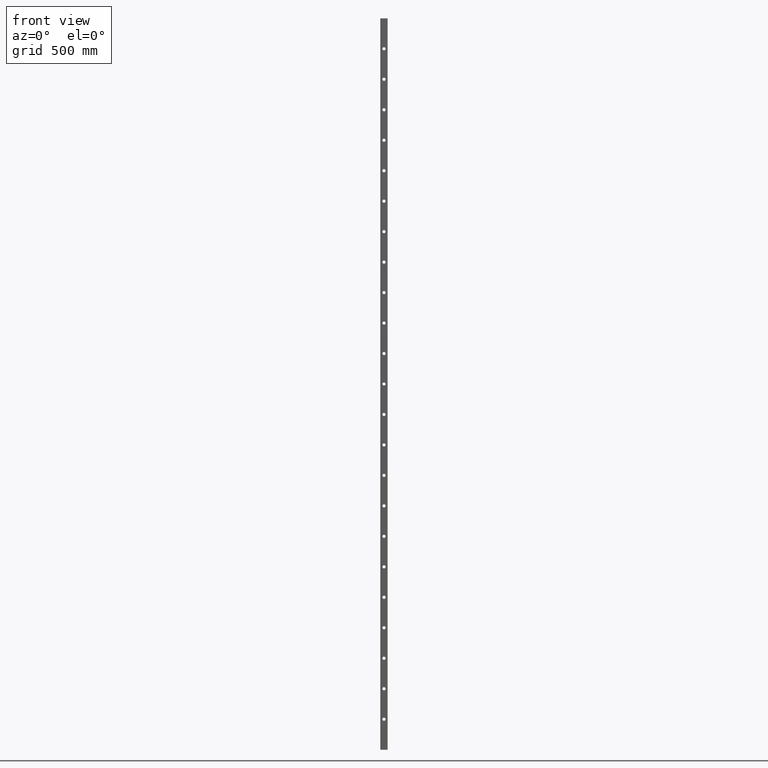
[diagram: clean part render]
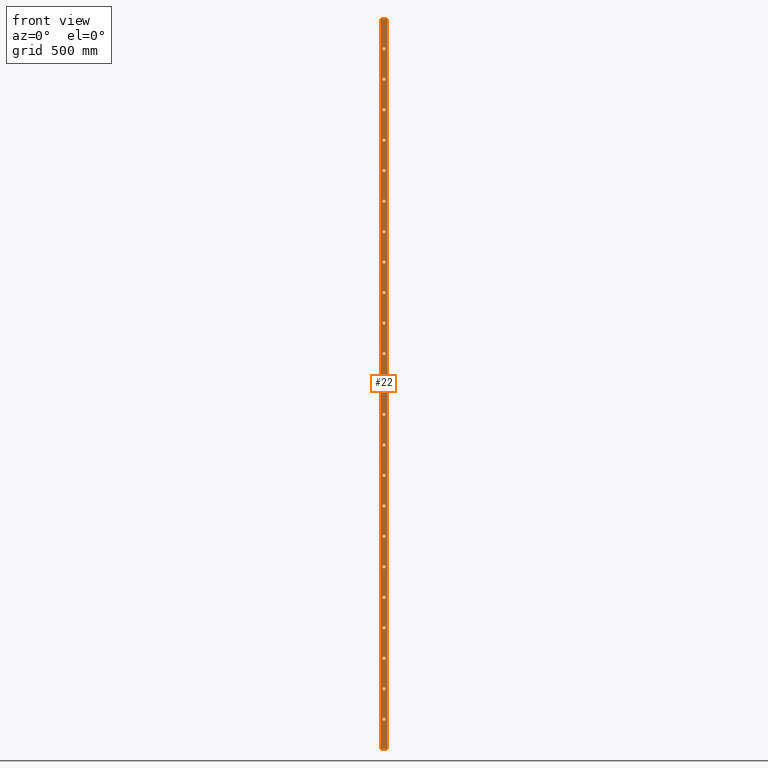
[diagram: same view with one face highlighted and labeled with its STEP entity id]
A machine part, front view. The second image highlights one B-rep face of the part: STEP entity #22.
In plain terms, the highlighted planar face has unit normal (0, 1, 0).
Its self-contained STEP definition (entity closure, byte-faithful):
#13 = DIRECTION ( 'NONE',  ( 0.000000000000000000, 1.000000000000000000, 0.000000000000000000 ) ) ;
#22 = ADVANCED_FACE ( 'NONE', ( #371, #197, #11808, #1985, #14286, #8826, #4262, #10920, #7963, #11641, #14462, #2338, #5296, #11463, #13586, #3744, #4957, #8465, #7604, #6902, #730, #11993, #7247, #13222 ), #1310, .F. ) ;
#32 = VERTEX_POINT ( 'NONE', #8476 ) ;
#41 = DIRECTION ( 'NONE',  ( -0.000000000000000000, -0.000000000000000000, -1.000000000000000000 ) ) ;
#132 = CARTESIAN_POINT ( 'NONE',  ( 1.178374951859557579E-11, -10.00000000000000178, 500.0000000000000000 ) ) ;
#186 = DIRECTION ( 'NONE',  ( 0.000000000000000000, 1.000000000000000000, 0.000000000000000000 ) ) ;
#197 = FACE_BOUND ( 'NONE', #4974, .T. ) ;
#220 = CARTESIAN_POINT ( 'NONE',  ( -12.00000000000001421, -10.00000000000000178, -1500.000000000000000 ) ) ;
#294 = EDGE_CURVE ( 'NONE', #1605, #1605, #4944, .T. ) ;
#371 = FACE_BOUND ( 'NONE', #9720, .T. ) ;
#372 = AXIS2_PLACEMENT_3D ( 'NONE', #14437, #12159, #14232 ) ;
#376 = VERTEX_POINT ( 'NONE', #8537 ) ;
#406 = ORIENTED_EDGE ( 'NONE', *, *, #8872, .T. ) ;
#510 = VECTOR ( 'NONE', #41, 1000.000000000000000 ) ;
#538 = DIRECTION ( 'NONE',  ( 0.000000000000000000, 0.000000000000000000, 1.000000000000000000 ) ) ;
#635 = DIRECTION ( 'NONE',  ( 0.000000000000000000, 0.000000000000000000, 1.000000000000000000 ) ) ;
#673 = CIRCLE ( 'NONE', #2835, 6.499999999999950262 ) ;
#730 = FACE_BOUND ( 'NONE', #1878, .T. ) ;
#734 = VERTEX_POINT ( 'NONE', #962 ) ;
#813 = DIRECTION ( 'NONE',  ( 0.000000000000000000, 0.000000000000000000, 1.000000000000000000 ) ) ;
#909 = CARTESIAN_POINT ( 'NONE',  ( 1.047444401652940017E-11, -10.00000000000000178, 131.4999999999999432 ) ) ;
#962 = CARTESIAN_POINT ( 'NONE',  ( 1.178374951859557579E-11, -10.00000000000000178, 506.4999999999999432 ) ) ;
#1168 = AXIS2_PLACEMENT_3D ( 'NONE', #12731, #2622, #11695 ) ;
#1184 = DIRECTION ( 'NONE',  ( 0.000000000000000000, 0.000000000000000000, 1.000000000000000000 ) ) ;
#1198 = DIRECTION ( 'NONE',  ( 0.000000000000000000, 0.000000000000000000, 1.000000000000000000 ) ) ;
#1256 = DIRECTION ( 'NONE',  ( 0.000000000000000000, 0.000000000000000000, 1.000000000000000000 ) ) ;
#1310 = PLANE ( 'NONE',  #14589 ) ;
#1316 = ORIENTED_EDGE ( 'NONE', *, *, #11521, .T. ) ;
#1372 = CIRCLE ( 'NONE', #6683, 6.499999999999950262 ) ;
#1374 = CARTESIAN_POINT ( 'NONE',  ( 9.601573681818616954E-12, -10.00000000000000178, -125.0000000000000000 ) ) ;
#1377 = EDGE_CURVE ( 'NONE', #5636, #5636, #5102, .T. ) ;
#1473 = VERTEX_POINT ( 'NONE', #6419 ) ;
#1605 = VERTEX_POINT ( 'NONE', #9707 ) ;
#1697 = EDGE_LOOP ( 'NONE', ( #8146 ) ) ;
#1698 = DIRECTION ( 'NONE',  ( 0.000000000000000000, 1.000000000000000000, 0.000000000000000000 ) ) ;
#1847 = AXIS2_PLACEMENT_3D ( 'NONE', #6886, #12675, #2473 ) ;
#1862 = CARTESIAN_POINT ( 'NONE',  ( 1.483879569008331623E-11, -10.00000000000000178, 1381.499999999999773 ) ) ;
#1878 = EDGE_LOOP ( 'NONE', ( #13057 ) ) ;
#1921 = CIRCLE ( 'NONE', #13757, 6.499999999999968914 ) ;
#1985 = FACE_BOUND ( 'NONE', #4137, .T. ) ;
#2188 = DIRECTION ( 'NONE',  ( 0.000000000000000000, 1.000000000000000000, 0.000000000000000000 ) ) ;
#2261 = CIRCLE ( 'NONE', #12892, 6.499999999999728217 ) ;
#2284 = AXIS2_PLACEMENT_3D ( 'NONE', #6750, #3379, #4494 ) ;
#2291 = CARTESIAN_POINT ( 'NONE',  ( -12.00000000000001421, -10.00000000000000178, 1500.000000000000000 ) ) ;
#2299 = DIRECTION ( 'NONE',  ( 0.000000000000000000, 0.000000000000000000, 1.000000000000000000 ) ) ;
#2338 = FACE_BOUND ( 'NONE', #11188, .T. ) ;
#2365 = CARTESIAN_POINT ( 'NONE',  ( 6.982962677686266509E-12, -10.00000000000000178, -875.0000000000000000 ) ) ;
#2425 = CIRCLE ( 'NONE', #11528, 6.499999999999950262 ) ;
#2434 = CIRCLE ( 'NONE', #11578, 6.500000000000005329 ) ;
#2473 = DIRECTION ( 'NONE',  ( 0.000000000000000000, 0.000000000000000000, 1.000000000000000000 ) ) ;
#2495 = DIRECTION ( 'NONE',  ( 0.000000000000000000, 1.000000000000000000, 0.000000000000000000 ) ) ;
#2553 = ORIENTED_EDGE ( 'NONE', *, *, #9934, .F. ) ;
#2576 = EDGE_CURVE ( 'NONE', #14216, #14216, #11069, .T. ) ;
#2622 = DIRECTION ( 'NONE',  ( 0.000000000000000000, 1.000000000000000000, 0.000000000000000000 ) ) ;
#2699 = ORIENTED_EDGE ( 'NONE', *, *, #10105, .T. ) ;
#2701 = EDGE_CURVE ( 'NONE', #4456, #7263, #10703, .T. ) ;
#2721 = DIRECTION ( 'NONE',  ( 0.000000000000000000, 1.000000000000000000, 0.000000000000000000 ) ) ;
#2723 = EDGE_LOOP ( 'NONE', ( #9567 ) ) ;
#2764 = ORIENTED_EDGE ( 'NONE', *, *, #7192, .T. ) ;
#2793 = CIRCLE ( 'NONE', #10008, 6.499999999999950262 ) ;
#2826 = CIRCLE ( 'NONE', #11099, 6.500000000000005329 ) ;
#2835 = AXIS2_PLACEMENT_3D ( 'NONE', #3482, #10338, #11250 ) ;
#2903 = DIRECTION ( 'NONE',  ( 0.000000000000000000, 0.000000000000000000, 1.000000000000000000 ) ) ;
#2989 = DIRECTION ( 'NONE',  ( 0.000000000000000000, 1.000000000000000000, 0.000000000000000000 ) ) ;
#3009 = DIRECTION ( 'NONE',  ( 0.000000000000000000, 0.000000000000000000, 1.000000000000000000 ) ) ;
#3046 = VERTEX_POINT ( 'NONE', #1862 ) ;
#3165 = EDGE_CURVE ( 'NONE', #7531, #7531, #12667, .T. ) ;
#3289 = CIRCLE ( 'NONE', #11196, 6.499999999999728217 ) ;
#3311 = DIRECTION ( 'NONE',  ( 0.000000000000000000, 0.000000000000000000, 1.000000000000000000 ) ) ;
#3359 = CARTESIAN_POINT ( 'NONE',  ( 8.728703347107833742E-12, -10.00000000000000178, -375.0000000000000000 ) ) ;
#3379 = DIRECTION ( 'NONE',  ( 0.000000000000000000, 1.000000000000000000, 0.000000000000000000 ) ) ;
#3406 = ORIENTED_EDGE ( 'NONE', *, *, #10662, .T. ) ;
#3457 = EDGE_CURVE ( 'NONE', #4709, #4709, #8598, .T. ) ;
#3482 = CARTESIAN_POINT ( 'NONE',  ( 1.047444401652940017E-11, -10.00000000000000178, 125.0000000000000000 ) ) ;
#3638 = ORIENTED_EDGE ( 'NONE', *, *, #6843, .T. ) ;
#3744 = FACE_BOUND ( 'NONE', #10794, .T. ) ;
#3965 = EDGE_LOOP ( 'NONE', ( #8691 ) ) ;
#4137 = EDGE_LOOP ( 'NONE', ( #11166 ) ) ;
#4258 = CARTESIAN_POINT ( 'NONE',  ( 11.99999999999998934, -9.999999999999998224, 1500.000000000000000 ) ) ;
#4262 = FACE_BOUND ( 'NONE', #5163, .T. ) ;
#4314 = CARTESIAN_POINT ( 'NONE',  ( 1.352949018801714222E-11, -10.00000000000000178, 1006.500000000000000 ) ) ;
#4353 = ORIENTED_EDGE ( 'NONE', *, *, #9160, .T. ) ;
#4366 = CARTESIAN_POINT ( 'NONE',  ( 8.292268179752441328E-12, -10.00000000000000178, -493.5000000000000000 ) ) ;
#4456 = VERTEX_POINT ( 'NONE', #4258 ) ;
#4484 = CARTESIAN_POINT ( 'NONE',  ( -12.00000000000001421, -10.00000000000000178, 1500.000000000000000 ) ) ;
#4494 = DIRECTION ( 'NONE',  ( 0.000000000000000000, 0.000000000000000000, 1.000000000000000000 ) ) ;
#4634 = DIRECTION ( 'NONE',  ( 0.000000000000000000, -0.000000000000000000, 1.000000000000000000 ) ) ;
#4709 = VERTEX_POINT ( 'NONE', #12958 ) ;
#4758 = DIRECTION ( 'NONE',  ( 0.000000000000000000, 1.000000000000000000, 0.000000000000000000 ) ) ;
#4801 = VERTEX_POINT ( 'NONE', #8735 ) ;
#4944 = CIRCLE ( 'NONE', #12312, 6.499999999999728217 ) ;
#4957 = FACE_BOUND ( 'NONE', #8548, .T. ) ;
#4974 = EDGE_LOOP ( 'NONE', ( #10133 ) ) ;
#5077 = CIRCLE ( 'NONE', #2284, 6.499999999999728217 ) ;
#5102 = CIRCLE ( 'NONE', #13996, 6.499999999999950262 ) ;
#5163 = EDGE_LOOP ( 'NONE', ( #2764 ) ) ;
#5296 = FACE_BOUND ( 'NONE', #12719, .T. ) ;
#5321 = CARTESIAN_POINT ( 'NONE',  ( 5.237222008264700891E-12, -10.00000000000000178, -1368.500000000000227 ) ) ;
#5335 = DIRECTION ( 'NONE',  ( 0.000000000000000000, 1.000000000000000000, 0.000000000000000000 ) ) ;
#5376 = CARTESIAN_POINT ( 'NONE',  ( 1.003800884917400775E-11, -10.00000000000000178, 6.499999999999968914 ) ) ;
#5393 = CARTESIAN_POINT ( 'NONE',  ( 1.003800884917400775E-11, -10.00000000000000178, 0.000000000000000000 ) ) ;
#5464 = AXIS2_PLACEMENT_3D ( 'NONE', #8777, #7707, #813 ) ;
#5468 = DIRECTION ( 'NONE',  ( 0.000000000000000000, 0.000000000000000000, 1.000000000000000000 ) ) ;
#5538 = ORIENTED_EDGE ( 'NONE', *, *, #13321, .T. ) ;
#5623 = AXIS2_PLACEMENT_3D ( 'NONE', #13255, #12334, #3311 ) ;
#5636 = VERTEX_POINT ( 'NONE', #13004 ) ;
#5859 = ORIENTED_EDGE ( 'NONE', *, *, #14158, .T. ) ;
#5966 = EDGE_CURVE ( 'NONE', #6485, #7263, #10823, .T. ) ;
#6063 = ORIENTED_EDGE ( 'NONE', *, *, #12910, .T. ) ;
#6111 = AXIS2_PLACEMENT_3D ( 'NONE', #13140, #2721, #14223 ) ;
#6203 = EDGE_CURVE ( 'NONE', #13058, #13058, #2434, .T. ) ;
#6233 = ORIENTED_EDGE ( 'NONE', *, *, #11525, .T. ) ;
#6368 = VERTEX_POINT ( 'NONE', #13199 ) ;
#6419 = CARTESIAN_POINT ( 'NONE',  ( 7.855833012397050529E-12, -10.00000000000000178, -618.5000000000000000 ) ) ;
#6429 = ORIENTED_EDGE ( 'NONE', *, *, #2701, .F. ) ;
#6438 = EDGE_CURVE ( 'NONE', #376, #376, #1372, .T. ) ;
#6485 = VERTEX_POINT ( 'NONE', #220 ) ;
#6498 = LINE ( 'NONE', #11298, #510 ) ;
#6519 = CARTESIAN_POINT ( 'NONE',  ( -12.00000000000001421, -10.00000000000000178, 1500.000000000000000 ) ) ;
#6565 = CARTESIAN_POINT ( 'NONE',  ( 7.419397845041658115E-12, -10.00000000000000178, -743.5000000000000000 ) ) ;
#6683 = AXIS2_PLACEMENT_3D ( 'NONE', #2365, #4758, #13709 ) ;
#6730 = VERTEX_POINT ( 'NONE', #10978 ) ;
#6750 = CARTESIAN_POINT ( 'NONE',  ( 1.483879569008331623E-11, -10.00000000000000178, 1375.000000000000000 ) ) ;
#6843 = EDGE_CURVE ( 'NONE', #32, #32, #3289, .T. ) ;
#6886 = CARTESIAN_POINT ( 'NONE',  ( 9.165138514463224540E-12, -10.00000000000000178, -250.0000000000000000 ) ) ;
#6902 = FACE_BOUND ( 'NONE', #11849, .T. ) ;
#6909 = ORIENTED_EDGE ( 'NONE', *, *, #1377, .T. ) ;
#7142 = ORIENTED_EDGE ( 'NONE', *, *, #5966, .T. ) ;
#7192 = EDGE_CURVE ( 'NONE', #7250, #7250, #8710, .T. ) ;
#7207 = DIRECTION ( 'NONE',  ( 1.000000000000000000, 0.000000000000000000, 0.000000000000000000 ) ) ;
#7247 = FACE_BOUND ( 'NONE', #9102, .T. ) ;
#7250 = VERTEX_POINT ( 'NONE', #7317 ) ;
#7263 = VERTEX_POINT ( 'NONE', #12838 ) ;
#7317 = CARTESIAN_POINT ( 'NONE',  ( 1.222018468595096659E-11, -10.00000000000000178, 631.5000000000000000 ) ) ;
#7338 = AXIS2_PLACEMENT_3D ( 'NONE', #1374, #2495, #538 ) ;
#7347 = CARTESIAN_POINT ( 'NONE',  ( 5.237222008264700891E-12, -10.00000000000000178, -1375.000000000000000 ) ) ;
#7435 = VERTEX_POINT ( 'NONE', #5376 ) ;
#7485 = EDGE_LOOP ( 'NONE', ( #11570 ) ) ;
#7531 = VERTEX_POINT ( 'NONE', #10721 ) ;
#7604 = FACE_BOUND ( 'NONE', #12874, .T. ) ;
#7707 = DIRECTION ( 'NONE',  ( 0.000000000000000000, 1.000000000000000000, 0.000000000000000000 ) ) ;
#7886 = CIRCLE ( 'NONE', #10921, 6.499999999999728217 ) ;
#7898 = DIRECTION ( 'NONE',  ( 0.000000000000000000, 1.000000000000000000, 0.000000000000000000 ) ) ;
#7963 = FACE_BOUND ( 'NONE', #8024, .T. ) ;
#8024 = EDGE_LOOP ( 'NONE', ( #5859 ) ) ;
#8146 = ORIENTED_EDGE ( 'NONE', *, *, #3165, .T. ) ;
#8148 = ORIENTED_EDGE ( 'NONE', *, *, #10833, .T. ) ;
#8165 = CARTESIAN_POINT ( 'NONE',  ( 1.091087918388479097E-11, -10.00000000000000178, 250.0000000000000000 ) ) ;
#8192 = VERTEX_POINT ( 'NONE', #6519 ) ;
#8365 = ORIENTED_EDGE ( 'NONE', *, *, #6438, .T. ) ;
#8419 = CIRCLE ( 'NONE', #1168, 6.499999999999839240 ) ;
#8465 = FACE_BOUND ( 'NONE', #10946, .T. ) ;
#8476 = CARTESIAN_POINT ( 'NONE',  ( 1.396592535537253302E-11, -10.00000000000000178, 1131.499999999999773 ) ) ;
#8537 = CARTESIAN_POINT ( 'NONE',  ( 6.982962677686266509E-12, -10.00000000000000178, -868.5000000000000000 ) ) ;
#8548 = EDGE_LOOP ( 'NONE', ( #1316 ) ) ;
#8598 = CIRCLE ( 'NONE', #7338, 6.499999999999950262 ) ;
#8691 = ORIENTED_EDGE ( 'NONE', *, *, #10019, .T. ) ;
#8710 = CIRCLE ( 'NONE', #6111, 6.499999999999950262 ) ;
#8735 = CARTESIAN_POINT ( 'NONE',  ( 9.165138514463224540E-12, -10.00000000000000178, -243.5000000000000284 ) ) ;
#8777 = CARTESIAN_POINT ( 'NONE',  ( 7.419397845041658115E-12, -10.00000000000000178, -750.0000000000000000 ) ) ;
#8826 = FACE_BOUND ( 'NONE', #9261, .T. ) ;
#8872 = EDGE_CURVE ( 'NONE', #3046, #3046, #5077, .T. ) ;
#8888 = EDGE_CURVE ( 'NONE', #12533, #12533, #2261, .T. ) ;
#8907 = DIRECTION ( 'NONE',  ( 1.000000000000000000, 0.000000000000000000, 0.000000000000000000 ) ) ;
#9102 = EDGE_LOOP ( 'NONE', ( #14194 ) ) ;
#9160 = EDGE_CURVE ( 'NONE', #10422, #10422, #2826, .T. ) ;
#9261 = EDGE_LOOP ( 'NONE', ( #6909 ) ) ;
#9352 = EDGE_LOOP ( 'NONE', ( #5538 ) ) ;
#9491 = VECTOR ( 'NONE', #8907, 1000.000000000000000 ) ;
#9565 = CARTESIAN_POINT ( 'NONE',  ( 6.110092342975483296E-12, -10.00000000000000178, -1118.500000000000227 ) ) ;
#9567 = ORIENTED_EDGE ( 'NONE', *, *, #12639, .T. ) ;
#9688 = DIRECTION ( 'NONE',  ( 0.000000000000000000, 1.000000000000000000, 0.000000000000000000 ) ) ;
#9707 = CARTESIAN_POINT ( 'NONE',  ( 1.440236052272792382E-11, -10.00000000000000178, 1256.499999999999773 ) ) ;
#9720 = EDGE_LOOP ( 'NONE', ( #406 ) ) ;
#9837 = DIRECTION ( 'NONE',  ( 0.000000000000000000, 1.000000000000000000, 0.000000000000000000 ) ) ;
#9934 = EDGE_CURVE ( 'NONE', #8192, #4456, #10023, .T. ) ;
#10008 = AXIS2_PLACEMENT_3D ( 'NONE', #10992, #9837, #3009 ) ;
#10019 = EDGE_CURVE ( 'NONE', #11115, #11115, #673, .T. ) ;
#10023 = LINE ( 'NONE', #4484, #9491 ) ;
#10045 = DIRECTION ( 'NONE',  ( -0.000000000000000000, -0.000000000000000000, -1.000000000000000000 ) ) ;
#10105 = EDGE_CURVE ( 'NONE', #8192, #6485, #6498, .T. ) ;
#10133 = ORIENTED_EDGE ( 'NONE', *, *, #294, .T. ) ;
#10253 = CARTESIAN_POINT ( 'NONE',  ( 1.396592535537253302E-11, -10.00000000000000178, 1125.000000000000000 ) ) ;
#10333 = VECTOR ( 'NONE', #7207, 1000.000000000000000 ) ;
#10338 = DIRECTION ( 'NONE',  ( 0.000000000000000000, 1.000000000000000000, 0.000000000000000000 ) ) ;
#10422 = VERTEX_POINT ( 'NONE', #4366 ) ;
#10582 = VERTEX_POINT ( 'NONE', #5321 ) ;
#10662 = EDGE_CURVE ( 'NONE', #6730, #6730, #8419, .T. ) ;
#10682 = CARTESIAN_POINT ( 'NONE',  ( 8.728703347107833742E-12, -10.00000000000000178, -368.5000000000000000 ) ) ;
#10703 = LINE ( 'NONE', #12198, #12825 ) ;
#10721 = CARTESIAN_POINT ( 'NONE',  ( 1.309305502066174980E-11, -10.00000000000000178, 881.5000000000000000 ) ) ;
#10742 = DIRECTION ( 'NONE',  ( 0.000000000000000000, 0.000000000000000000, 1.000000000000000000 ) ) ;
#10768 = EDGE_LOOP ( 'NONE', ( #3638 ) ) ;
#10794 = EDGE_LOOP ( 'NONE', ( #4353 ) ) ;
#10820 = DIRECTION ( 'NONE',  ( 0.000000000000000000, 0.000000000000000000, 1.000000000000000000 ) ) ;
#10823 = LINE ( 'NONE', #12944, #10333 ) ;
#10833 = EDGE_CURVE ( 'NONE', #7435, #7435, #1921, .T. ) ;
#10845 = DIRECTION ( 'NONE',  ( 0.000000000000000000, 0.000000000000000000, 1.000000000000000000 ) ) ;
#10849 = EDGE_CURVE ( 'NONE', #13589, #13589, #2793, .T. ) ;
#10920 = FACE_BOUND ( 'NONE', #9352, .T. ) ;
#10921 = AXIS2_PLACEMENT_3D ( 'NONE', #7347, #9688, #635 ) ;
#10946 = EDGE_LOOP ( 'NONE', ( #6233 ) ) ;
#10978 = CARTESIAN_POINT ( 'NONE',  ( 6.546527510330874902E-12, -10.00000000000000178, -993.5000000000001137 ) ) ;
#10992 = CARTESIAN_POINT ( 'NONE',  ( 1.352949018801714222E-11, -10.00000000000000178, 1000.000000000000000 ) ) ;
#11069 = CIRCLE ( 'NONE', #12215, 6.499999999999728217 ) ;
#11099 = AXIS2_PLACEMENT_3D ( 'NONE', #11990, #1698, #10742 ) ;
#11115 = VERTEX_POINT ( 'NONE', #909 ) ;
#11123 = CARTESIAN_POINT ( 'NONE',  ( 1.265661985330635901E-11, -10.00000000000000178, 750.0000000000000000 ) ) ;
#11166 = ORIENTED_EDGE ( 'NONE', *, *, #10849, .T. ) ;
#11188 = EDGE_LOOP ( 'NONE', ( #8148 ) ) ;
#11189 = DIRECTION ( 'NONE',  ( 0.000000000000000000, 1.000000000000000000, 0.000000000000000000 ) ) ;
#11190 = CIRCLE ( 'NONE', #13201, 6.500000000000005329 ) ;
#11196 = AXIS2_PLACEMENT_3D ( 'NONE', #10253, #11377, #2299 ) ;
#11225 = CARTESIAN_POINT ( 'NONE',  ( 1.440236052272792382E-11, -10.00000000000000178, 1250.000000000000000 ) ) ;
#11250 = DIRECTION ( 'NONE',  ( 0.000000000000000000, 0.000000000000000000, 1.000000000000000000 ) ) ;
#11298 = CARTESIAN_POINT ( 'NONE',  ( -12.00000000000001421, -10.00000000000000178, 1500.000000000000000 ) ) ;
#11377 = DIRECTION ( 'NONE',  ( 0.000000000000000000, 1.000000000000000000, 0.000000000000000000 ) ) ;
#11463 = FACE_BOUND ( 'NONE', #14312, .T. ) ;
#11521 = EDGE_CURVE ( 'NONE', #1473, #1473, #14575, .T. ) ;
#11525 = EDGE_CURVE ( 'NONE', #11644, #11644, #12971, .T. ) ;
#11528 = AXIS2_PLACEMENT_3D ( 'NONE', #132, #12524, #13562 ) ;
#11570 = ORIENTED_EDGE ( 'NONE', *, *, #8888, .T. ) ;
#11578 = AXIS2_PLACEMENT_3D ( 'NONE', #3359, #11189, #1198 ) ;
#11641 = FACE_BOUND ( 'NONE', #2723, .T. ) ;
#11644 = VERTEX_POINT ( 'NONE', #6565 ) ;
#11693 = EDGE_LOOP ( 'NONE', ( #7142, #6429, #2553, #2699 ) ) ;
#11695 = DIRECTION ( 'NONE',  ( 0.000000000000000000, 0.000000000000000000, 1.000000000000000000 ) ) ;
#11726 = CIRCLE ( 'NONE', #1847, 6.499999999999977796 ) ;
#11808 = FACE_BOUND ( 'NONE', #10768, .T. ) ;
#11811 = CARTESIAN_POINT ( 'NONE',  ( 6.110092342975483296E-12, -10.00000000000000178, -1125.000000000000000 ) ) ;
#11849 = EDGE_LOOP ( 'NONE', ( #3406 ) ) ;
#11877 = CARTESIAN_POINT ( 'NONE',  ( 1.134731435124018338E-11, -10.00000000000000178, 375.0000000000000000 ) ) ;
#11900 = EDGE_CURVE ( 'NONE', #10582, #10582, #7886, .T. ) ;
#11990 = CARTESIAN_POINT ( 'NONE',  ( 8.292268179752441328E-12, -10.00000000000000178, -500.0000000000000000 ) ) ;
#11993 = FACE_BOUND ( 'NONE', #7485, .T. ) ;
#12159 = DIRECTION ( 'NONE',  ( 0.000000000000000000, 1.000000000000000000, 0.000000000000000000 ) ) ;
#12163 = CARTESIAN_POINT ( 'NONE',  ( 1.091087918388479097E-11, -10.00000000000000178, 256.5000000000000000 ) ) ;
#12198 = CARTESIAN_POINT ( 'NONE',  ( 11.99999999999998934, -9.999999999999998224, 1500.000000000000000 ) ) ;
#12215 = AXIS2_PLACEMENT_3D ( 'NONE', #11811, #2989, #10820 ) ;
#12256 = ORIENTED_EDGE ( 'NONE', *, *, #3457, .T. ) ;
#12267 = DIRECTION ( 'NONE',  ( 0.000000000000000000, 1.000000000000000000, 0.000000000000000000 ) ) ;
#12312 = AXIS2_PLACEMENT_3D ( 'NONE', #11225, #13, #1184 ) ;
#12331 = CIRCLE ( 'NONE', #13712, 6.500000000000005329 ) ;
#12334 = DIRECTION ( 'NONE',  ( 0.000000000000000000, 1.000000000000000000, 0.000000000000000000 ) ) ;
#12354 = DIRECTION ( 'NONE',  ( 0.000000000000000000, 0.000000000000000000, 1.000000000000000000 ) ) ;
#12524 = DIRECTION ( 'NONE',  ( 0.000000000000000000, 1.000000000000000000, 0.000000000000000000 ) ) ;
#12533 = VERTEX_POINT ( 'NONE', #14396 ) ;
#12639 = EDGE_CURVE ( 'NONE', #13931, #13931, #11190, .T. ) ;
#12667 = CIRCLE ( 'NONE', #5623, 6.499999999999950262 ) ;
#12675 = DIRECTION ( 'NONE',  ( 0.000000000000000000, 1.000000000000000000, 0.000000000000000000 ) ) ;
#12719 = EDGE_LOOP ( 'NONE', ( #12256 ) ) ;
#12731 = CARTESIAN_POINT ( 'NONE',  ( 6.546527510330874902E-12, -10.00000000000000178, -1000.000000000000000 ) ) ;
#12825 = VECTOR ( 'NONE', #10045, 1000.000000000000000 ) ;
#12838 = CARTESIAN_POINT ( 'NONE',  ( 11.99999999999998934, -9.999999999999998224, -1500.000000000000000 ) ) ;
#12874 = EDGE_LOOP ( 'NONE', ( #8365 ) ) ;
#12892 = AXIS2_PLACEMENT_3D ( 'NONE', #14528, #2188, #12354 ) ;
#12910 = EDGE_CURVE ( 'NONE', #4801, #4801, #11726, .T. ) ;
#12944 = CARTESIAN_POINT ( 'NONE',  ( -12.00000000000001421, -10.00000000000000178, -1500.000000000000000 ) ) ;
#12958 = CARTESIAN_POINT ( 'NONE',  ( 9.601573681818616954E-12, -10.00000000000000178, -118.5000000000000568 ) ) ;
#12971 = CIRCLE ( 'NONE', #5464, 6.499999999999950262 ) ;
#13004 = CARTESIAN_POINT ( 'NONE',  ( 1.265661985330635901E-11, -10.00000000000000178, 756.5000000000000000 ) ) ;
#13010 = DIRECTION ( 'NONE',  ( 0.000000000000000000, 1.000000000000000000, 0.000000000000000000 ) ) ;
#13057 = ORIENTED_EDGE ( 'NONE', *, *, #2576, .T. ) ;
#13058 = VERTEX_POINT ( 'NONE', #10682 ) ;
#13140 = CARTESIAN_POINT ( 'NONE',  ( 1.222018468595096659E-11, -10.00000000000000178, 625.0000000000000000 ) ) ;
#13199 = CARTESIAN_POINT ( 'NONE',  ( 1.134731435124018338E-11, -10.00000000000000178, 381.5000000000000000 ) ) ;
#13201 = AXIS2_PLACEMENT_3D ( 'NONE', #8165, #186, #1256 ) ;
#13222 = FACE_OUTER_BOUND ( 'NONE', #11693, .T. ) ;
#13255 = CARTESIAN_POINT ( 'NONE',  ( 1.309305502066174980E-11, -10.00000000000000178, 875.0000000000000000 ) ) ;
#13321 = EDGE_CURVE ( 'NONE', #734, #734, #2425, .T. ) ;
#13562 = DIRECTION ( 'NONE',  ( 0.000000000000000000, 0.000000000000000000, 1.000000000000000000 ) ) ;
#13586 = FACE_BOUND ( 'NONE', #13933, .T. ) ;
#13589 = VERTEX_POINT ( 'NONE', #4314 ) ;
#13709 = DIRECTION ( 'NONE',  ( 0.000000000000000000, 0.000000000000000000, 1.000000000000000000 ) ) ;
#13712 = AXIS2_PLACEMENT_3D ( 'NONE', #11877, #13010, #2903 ) ;
#13757 = AXIS2_PLACEMENT_3D ( 'NONE', #5393, #5335, #10845 ) ;
#13931 = VERTEX_POINT ( 'NONE', #12163 ) ;
#13933 = EDGE_LOOP ( 'NONE', ( #14383 ) ) ;
#13996 = AXIS2_PLACEMENT_3D ( 'NONE', #11123, #12267, #5468 ) ;
#14158 = EDGE_CURVE ( 'NONE', #6368, #6368, #12331, .T. ) ;
#14194 = ORIENTED_EDGE ( 'NONE', *, *, #11900, .T. ) ;
#14216 = VERTEX_POINT ( 'NONE', #9565 ) ;
#14223 = DIRECTION ( 'NONE',  ( 0.000000000000000000, 0.000000000000000000, 1.000000000000000000 ) ) ;
#14232 = DIRECTION ( 'NONE',  ( 0.000000000000000000, 0.000000000000000000, 1.000000000000000000 ) ) ;
#14286 = FACE_BOUND ( 'NONE', #1697, .T. ) ;
#14312 = EDGE_LOOP ( 'NONE', ( #6063 ) ) ;
#14383 = ORIENTED_EDGE ( 'NONE', *, *, #6203, .T. ) ;
#14396 = CARTESIAN_POINT ( 'NONE',  ( 5.673657175620091690E-12, -10.00000000000000178, -1243.500000000000227 ) ) ;
#14437 = CARTESIAN_POINT ( 'NONE',  ( 7.855833012397050529E-12, -10.00000000000000178, -625.0000000000000000 ) ) ;
#14462 = FACE_BOUND ( 'NONE', #3965, .T. ) ;
#14528 = CARTESIAN_POINT ( 'NONE',  ( 5.673657175620091690E-12, -10.00000000000000178, -1250.000000000000000 ) ) ;
#14575 = CIRCLE ( 'NONE', #372, 6.499999999999950262 ) ;
#14589 = AXIS2_PLACEMENT_3D ( 'NONE', #2291, #7898, #4634 ) ;